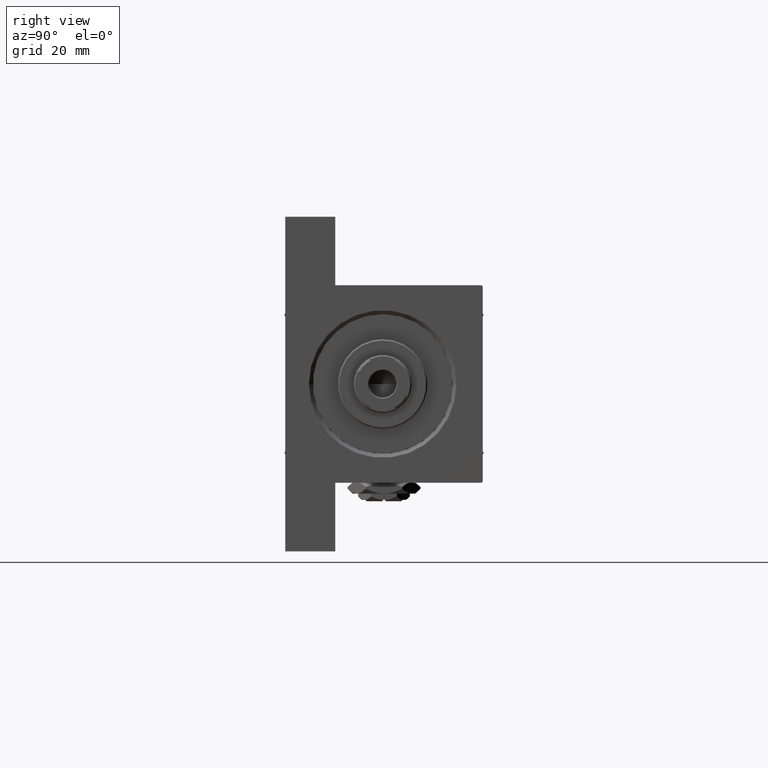
[diagram: clean part render]
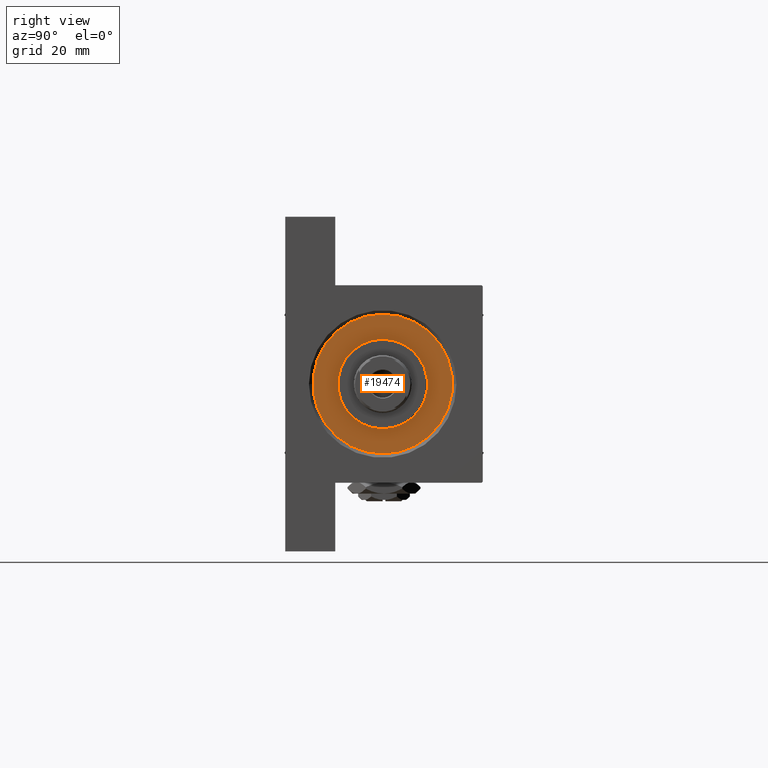
[diagram: same view with one face highlighted and labeled with its STEP entity id]
A machine part, right view. The second image highlights one B-rep face of the part: STEP entity #19474.
In plain terms, the highlighted planar face has unit normal (1, 0, 0).
Its self-contained STEP definition (entity closure, byte-faithful):
#186 = DIRECTION ( 'NONE',  ( 0.000000000000000000, 0.000000000000000000, 1.000000000000000000 ) ) ;
#2869 = VERTEX_POINT ( 'NONE', #38023 ) ;
#3473 = FACE_OUTER_BOUND ( 'NONE', #37183, .T. ) ;
#4221 = CARTESIAN_POINT ( 'NONE',  ( 0.000000000000000000, 0.000000000000000000, 28.69999999999999929 ) ) ;
#4589 = CIRCLE ( 'NONE', #26061, 17.00000000000000000 ) ;
#4678 = ORIENTED_EDGE ( 'NONE', *, *, #10471, .T. ) ;
#7899 = EDGE_LOOP ( 'NONE', ( #46850, #39227 ) ) ;
#9032 = CARTESIAN_POINT ( 'NONE',  ( 0.000000000000000000, 0.000000000000000000, 28.69999999999999929 ) ) ;
#10471 = EDGE_CURVE ( 'NONE', #18257, #22837, #28446, .T. ) ;
#11459 = FACE_BOUND ( 'NONE', #7899, .T. ) ;
#12239 = AXIS2_PLACEMENT_3D ( 'NONE', #49258, #186, #45026 ) ;
#12816 = CARTESIAN_POINT ( 'NONE',  ( 0.000000000000000000, 0.000000000000000000, 28.69999999999999929 ) ) ;
#15191 = PLANE ( 'NONE',  #30450 ) ;
#15433 = DIRECTION ( 'NONE',  ( 1.000000000000000000, 0.000000000000000000, -0.000000000000000000 ) ) ;
#18257 = VERTEX_POINT ( 'NONE', #36524 ) ;
#19474 = ADVANCED_FACE ( 'NONE', ( #11459, #3473 ), #15191, .T. ) ;
#19866 = DIRECTION ( 'NONE',  ( 0.000000000000000000, 0.000000000000000000, 1.000000000000000000 ) ) ;
#20547 = VERTEX_POINT ( 'NONE', #47259 ) ;
#20599 = EDGE_CURVE ( 'NONE', #2869, #20547, #35294, .T. ) ;
#22837 = VERTEX_POINT ( 'NONE', #26606 ) ;
#25966 = ORIENTED_EDGE ( 'NONE', *, *, #40908, .T. ) ;
#26061 = AXIS2_PLACEMENT_3D ( 'NONE', #9032, #34724, #31463 ) ;
#26606 = CARTESIAN_POINT ( 'NONE',  ( -26.50000000000000355, 0.000000000000000000, 28.69999999999999929 ) ) ;
#27761 = DIRECTION ( 'NONE',  ( 1.000000000000000000, 0.000000000000000000, 0.000000000000000000 ) ) ;
#28446 = CIRCLE ( 'NONE', #34843, 26.50000000000000355 ) ;
#30450 = AXIS2_PLACEMENT_3D ( 'NONE', #4221, #45821, #15433 ) ;
#31317 = CARTESIAN_POINT ( 'NONE',  ( 0.000000000000000000, 0.000000000000000000, 28.69999999999999929 ) ) ;
#31463 = DIRECTION ( 'NONE',  ( 1.000000000000000000, 0.000000000000000000, 0.000000000000000000 ) ) ;
#34724 = DIRECTION ( 'NONE',  ( 0.000000000000000000, 0.000000000000000000, 1.000000000000000000 ) ) ;
#34843 = AXIS2_PLACEMENT_3D ( 'NONE', #31317, #19866, #46504 ) ;
#35005 = DIRECTION ( 'NONE',  ( 0.000000000000000000, 0.000000000000000000, 1.000000000000000000 ) ) ;
#35285 = CIRCLE ( 'NONE', #40875, 26.50000000000000355 ) ;
#35294 = CIRCLE ( 'NONE', #12239, 17.00000000000000000 ) ;
#36524 = CARTESIAN_POINT ( 'NONE',  ( 26.50000000000000355, 3.245314017740486554E-15, 28.69999999999999929 ) ) ;
#36995 = EDGE_CURVE ( 'NONE', #20547, #2869, #4589, .T. ) ;
#37183 = EDGE_LOOP ( 'NONE', ( #25966, #4678 ) ) ;
#38023 = CARTESIAN_POINT ( 'NONE',  ( 17.00000000000000000, 2.081899558550500280E-15, 28.69999999999999929 ) ) ;
#39227 = ORIENTED_EDGE ( 'NONE', *, *, #20599, .F. ) ;
#40875 = AXIS2_PLACEMENT_3D ( 'NONE', #12816, #35005, #27761 ) ;
#40908 = EDGE_CURVE ( 'NONE', #22837, #18257, #35285, .T. ) ;
#45026 = DIRECTION ( 'NONE',  ( 1.000000000000000000, 0.000000000000000000, 0.000000000000000000 ) ) ;
#45821 = DIRECTION ( 'NONE',  ( 0.000000000000000000, 0.000000000000000000, 1.000000000000000000 ) ) ;
#46504 = DIRECTION ( 'NONE',  ( 1.000000000000000000, 0.000000000000000000, 0.000000000000000000 ) ) ;
#46850 = ORIENTED_EDGE ( 'NONE', *, *, #36995, .F. ) ;
#47259 = CARTESIAN_POINT ( 'NONE',  ( -17.00000000000000000, 0.000000000000000000, 28.69999999999999929 ) ) ;
#49258 = CARTESIAN_POINT ( 'NONE',  ( 0.000000000000000000, 0.000000000000000000, 28.69999999999999929 ) ) ;